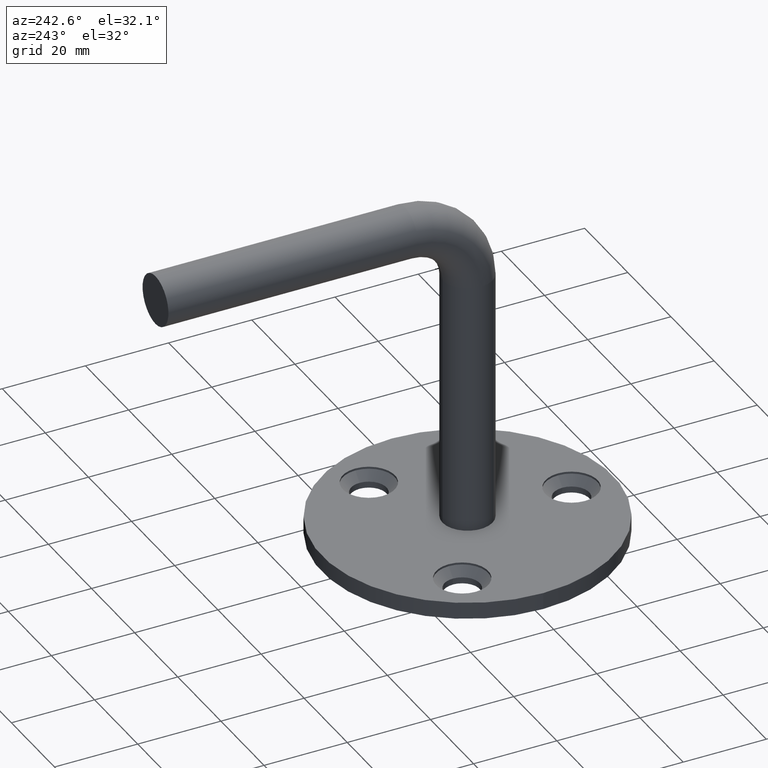
[diagram: clean part render]
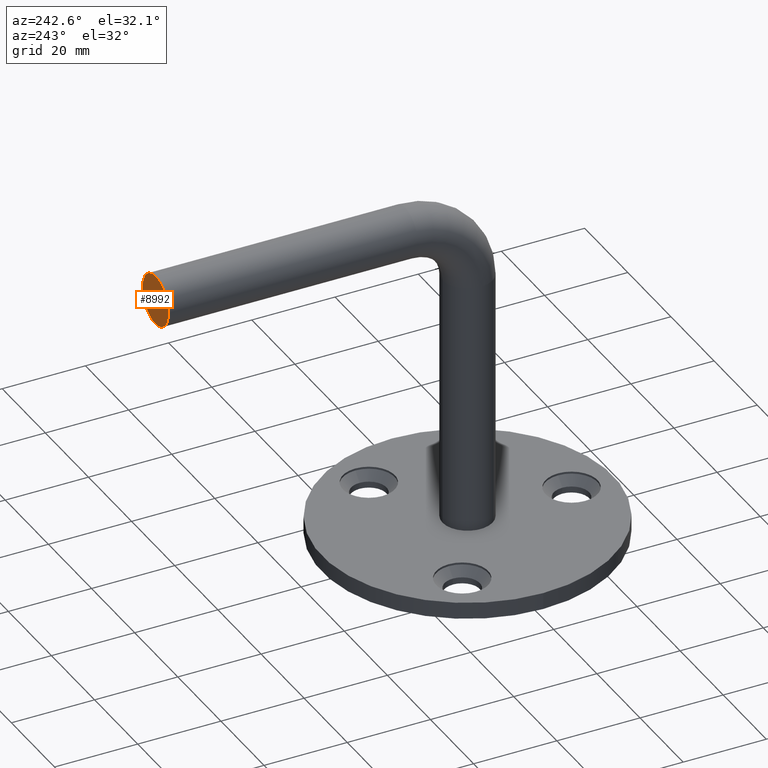
[diagram: same view with one face highlighted and labeled with its STEP entity id]
A machine part, auxiliary view. The second image highlights one B-rep face of the part: STEP entity #8992.
In plain terms, the highlighted planar face has unit normal (0, -1, 0).
Its self-contained STEP definition (entity closure, byte-faithful):
#78 = DIRECTION ( 'NONE',  ( 0.000000000000000000, -1.000000000000000000, 1.437166698016966745E-14 ) ) ;
#1230 = EDGE_CURVE ( 'NONE', #16265, #13428, #15302, .T. ) ;
#1552 = CARTESIAN_POINT ( 'NONE',  ( 0.000000000000000000, 74.99999999999998579, 80.00000000000000000 ) ) ;
#3916 = CARTESIAN_POINT ( 'NONE',  ( 0.000000000000000000, 75.00000000000007105, 86.00000000000000000 ) ) ;
#5417 = DIRECTION ( 'NONE',  ( 0.000000000000000000, -1.000000000000000000, 1.437166698016966745E-14 ) ) ;
#5496 = DIRECTION ( 'NONE',  ( -1.000000000000000000, 0.000000000000000000, 0.000000000000000000 ) ) ;
#5503 = FACE_OUTER_BOUND ( 'NONE', #10963, .T. ) ;
#6548 = ORIENTED_EDGE ( 'NONE', *, *, #1230, .F. ) ;
#6802 = DIRECTION ( 'NONE',  ( -1.000000000000000000, 0.000000000000000000, 0.000000000000000000 ) ) ;
#8992 = ADVANCED_FACE ( 'NONE', ( #5503 ), #12087, .F. ) ;
#9206 = CIRCLE ( 'NONE', #16097, 6.000000000000000888 ) ;
#10963 = EDGE_LOOP ( 'NONE', ( #6548, #13691 ) ) ;
#12029 = AXIS2_PLACEMENT_3D ( 'NONE', #13304, #78, #5496 ) ;
#12087 = PLANE ( 'NONE',  #13493 ) ;
#13304 = CARTESIAN_POINT ( 'NONE',  ( 0.000000000000000000, 74.99999999999998579, 80.00000000000000000 ) ) ;
#13428 = VERTEX_POINT ( 'NONE', #16539 ) ;
#13493 = AXIS2_PLACEMENT_3D ( 'NONE', #1552, #16114, #16301 ) ;
#13691 = ORIENTED_EDGE ( 'NONE', *, *, #16644, .F. ) ;
#14808 = CARTESIAN_POINT ( 'NONE',  ( 0.000000000000000000, 74.99999999999998579, 80.00000000000000000 ) ) ;
#15302 = CIRCLE ( 'NONE', #12029, 6.000000000000000888 ) ;
#16097 = AXIS2_PLACEMENT_3D ( 'NONE', #14808, #5417, #6802 ) ;
#16114 = DIRECTION ( 'NONE',  ( 0.000000000000000000, -1.000000000000000000, 1.437166698016966745E-14 ) ) ;
#16265 = VERTEX_POINT ( 'NONE', #3916 ) ;
#16301 = DIRECTION ( 'NONE',  ( -1.000000000000000000, -0.000000000000000000, 0.000000000000000000 ) ) ;
#16539 = CARTESIAN_POINT ( 'NONE',  ( 7.347880794884114806E-16, 74.99999999999990052, 74.00000000000000000 ) ) ;
#16644 = EDGE_CURVE ( 'NONE', #13428, #16265, #9206, .T. ) ;